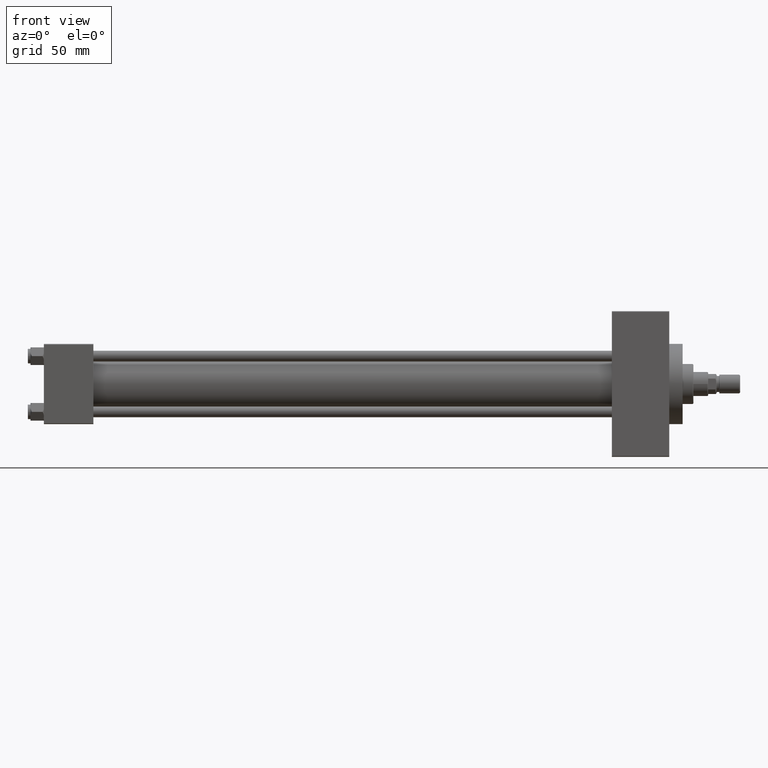
[diagram: clean part render]
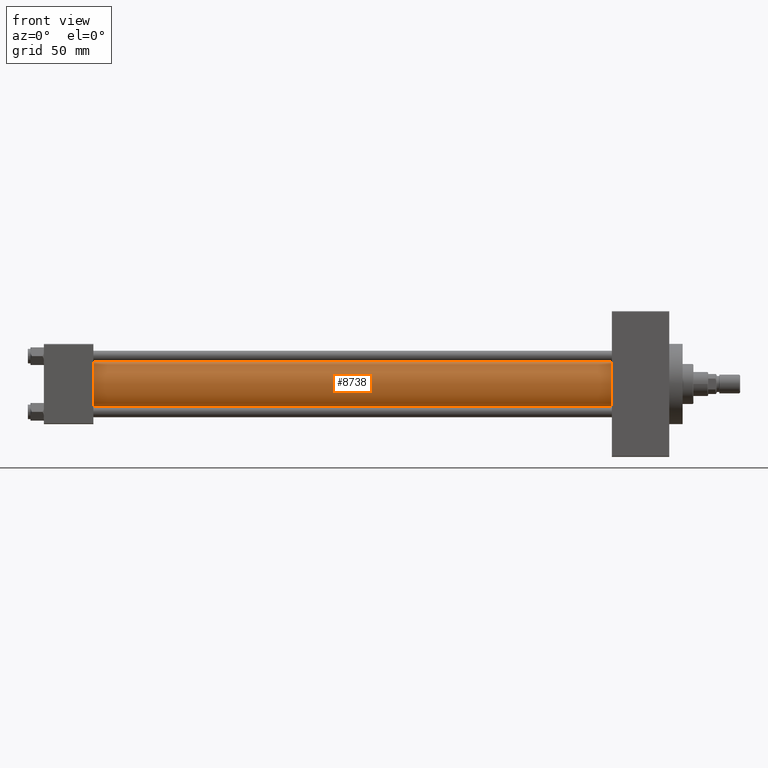
[diagram: same view with one face highlighted and labeled with its STEP entity id]
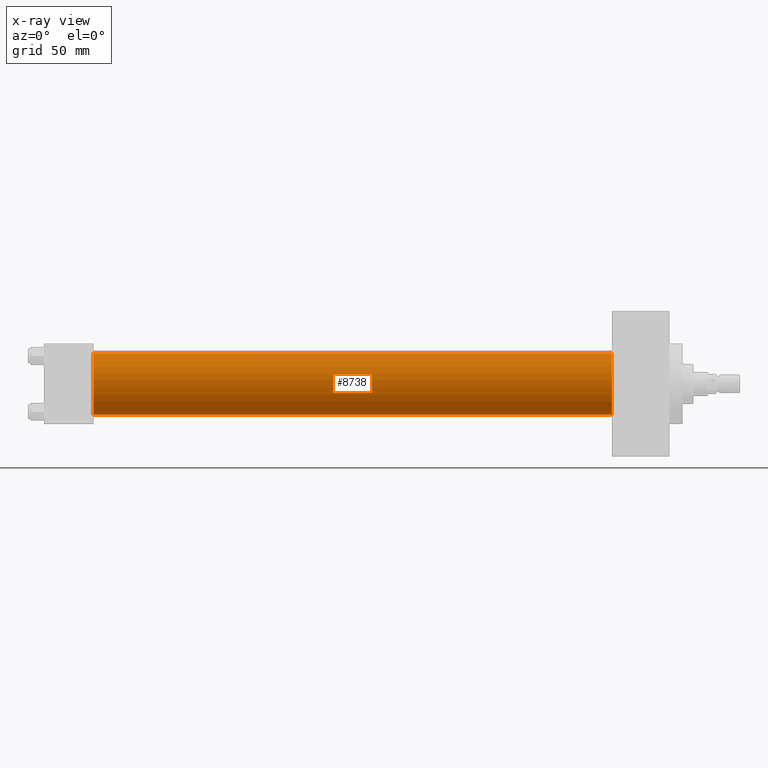
[diagram: x-ray of the same camera — body ghosted, the highlighted face saturated]
A machine part, front view. The second image highlights one B-rep face of the part: STEP entity #8738.
The next image is the same camera in x-ray: the body ghosted, the highlighted face saturated — about 0% of this face is hidden behind the body in this view.
In plain terms, the highlighted cylindrical surface (edge-blend (fillet) strip) has radius 23 mm, axis along (-1, -0, -0).
Its self-contained STEP definition (entity closure, byte-faithful):
#1304 = CIRCLE ( 'NONE', #15933, 23.00000000000000000 ) ;
#2468 = DIRECTION ( 'NONE',  ( 0.000000000000000000, 0.000000000000000000, 1.000000000000000000 ) ) ;
#3462 = VERTEX_POINT ( 'NONE', #29290 ) ;
#4481 = FACE_OUTER_BOUND ( 'NONE', #12028, .T. ) ;
#5390 = VECTOR ( 'NONE', #34422, 1000.000000000000000 ) ;
#5622 = CARTESIAN_POINT ( 'NONE',  ( 36.99999999999997868, -2.602085213965210642E-15, 0.000000000000000000 ) ) ;
#5826 = VERTEX_POINT ( 'NONE', #29337 ) ;
#7139 = EDGE_CURVE ( 'NONE', #34937, #28309, #7771, .T. ) ;
#7771 = LINE ( 'NONE', #14517, #16686 ) ;
#7811 = EDGE_CURVE ( 'NONE', #3462, #34937, #1304, .T. ) ;
#8738 = ADVANCED_FACE ( 'NONE', ( #4481 ), #40658, .T. ) ;
#10803 = EDGE_CURVE ( 'NONE', #3462, #5826, #38028, .T. ) ;
#12028 = EDGE_LOOP ( 'NONE', ( #28394, #26325, #32282, #15395 ) ) ;
#14517 = CARTESIAN_POINT ( 'NONE',  ( 425.0000000000000000, 2.146024240737012665E-16, -23.00000000000000000 ) ) ;
#15395 = ORIENTED_EDGE ( 'NONE', *, *, #44685, .T. ) ;
#15547 = CARTESIAN_POINT ( 'NONE',  ( 425.0000000000000000, -2.602085213965210642E-15, 0.000000000000000000 ) ) ;
#15933 = AXIS2_PLACEMENT_3D ( 'NONE', #22365, #33238, #29866 ) ;
#16686 = VECTOR ( 'NONE', #40808, 1000.000000000000000 ) ;
#18447 = DIRECTION ( 'NONE',  ( -1.000000000000000000, -0.000000000000000000, -0.000000000000000000 ) ) ;
#22365 = CARTESIAN_POINT ( 'NONE',  ( 425.0000000000000000, -2.602085213965210642E-15, 0.000000000000000000 ) ) ;
#22896 = AXIS2_PLACEMENT_3D ( 'NONE', #15547, #18447, #30053 ) ;
#26325 = ORIENTED_EDGE ( 'NONE', *, *, #7811, .F. ) ;
#26704 = CARTESIAN_POINT ( 'NONE',  ( 425.0000000000000000, -2.602085213965210642E-15, 23.00000000000000000 ) ) ;
#28250 = CARTESIAN_POINT ( 'NONE',  ( 425.0000000000000000, 2.146024240737012665E-16, -23.00000000000000000 ) ) ;
#28309 = VERTEX_POINT ( 'NONE', #30428 ) ;
#28394 = ORIENTED_EDGE ( 'NONE', *, *, #7139, .F. ) ;
#29290 = CARTESIAN_POINT ( 'NONE',  ( 425.0000000000000000, -2.602085213965210642E-15, 23.00000000000000000 ) ) ;
#29337 = CARTESIAN_POINT ( 'NONE',  ( 36.99999999999997868, -2.602085213965210642E-15, 23.00000000000000000 ) ) ;
#29866 = DIRECTION ( 'NONE',  ( 0.000000000000000000, 0.000000000000000000, -1.000000000000000000 ) ) ;
#30053 = DIRECTION ( 'NONE',  ( 0.000000000000000000, 0.000000000000000000, 1.000000000000000000 ) ) ;
#30428 = CARTESIAN_POINT ( 'NONE',  ( 36.99999999999997868, 2.146024240737012665E-16, -23.00000000000000000 ) ) ;
#32282 = ORIENTED_EDGE ( 'NONE', *, *, #10803, .T. ) ;
#33238 = DIRECTION ( 'NONE',  ( 1.000000000000000000, 0.000000000000000000, 0.000000000000000000 ) ) ;
#34422 = DIRECTION ( 'NONE',  ( -1.000000000000000000, -0.000000000000000000, -0.000000000000000000 ) ) ;
#34813 = DIRECTION ( 'NONE',  ( 1.000000000000000000, -0.000000000000000000, 0.000000000000000000 ) ) ;
#34937 = VERTEX_POINT ( 'NONE', #28250 ) ;
#38028 = LINE ( 'NONE', #26704, #5390 ) ;
#38799 = CIRCLE ( 'NONE', #42656, 23.00000000000000000 ) ;
#40658 = CYLINDRICAL_SURFACE ( 'NONE', #22896, 23.00000000000000000 ) ;
#40808 = DIRECTION ( 'NONE',  ( -1.000000000000000000, -0.000000000000000000, -0.000000000000000000 ) ) ;
#42656 = AXIS2_PLACEMENT_3D ( 'NONE', #5622, #34813, #2468 ) ;
#44685 = EDGE_CURVE ( 'NONE', #5826, #28309, #38799, .T. ) ;